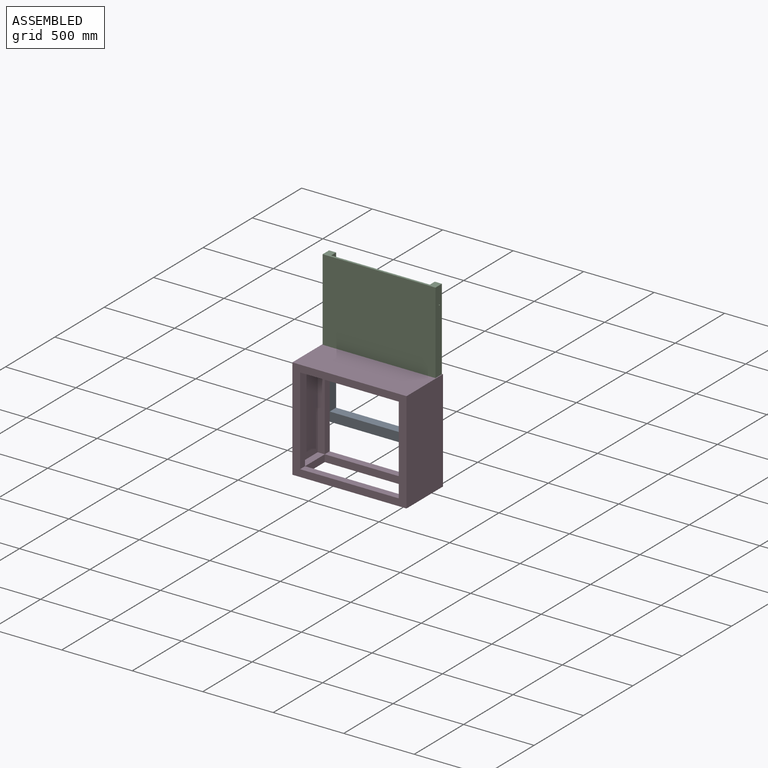
[diagram: assembled view]
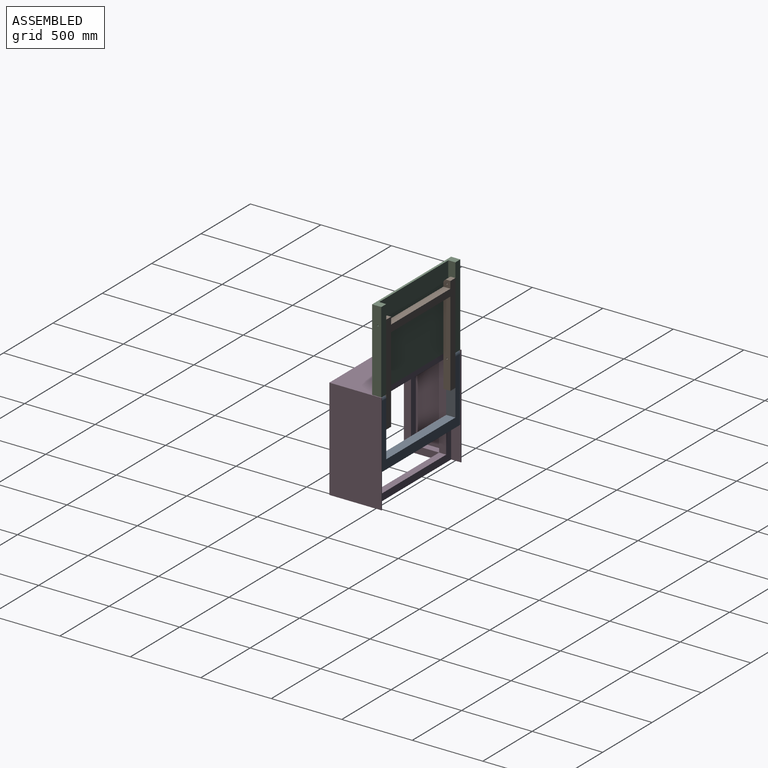
[diagram: assembled view, second angle]
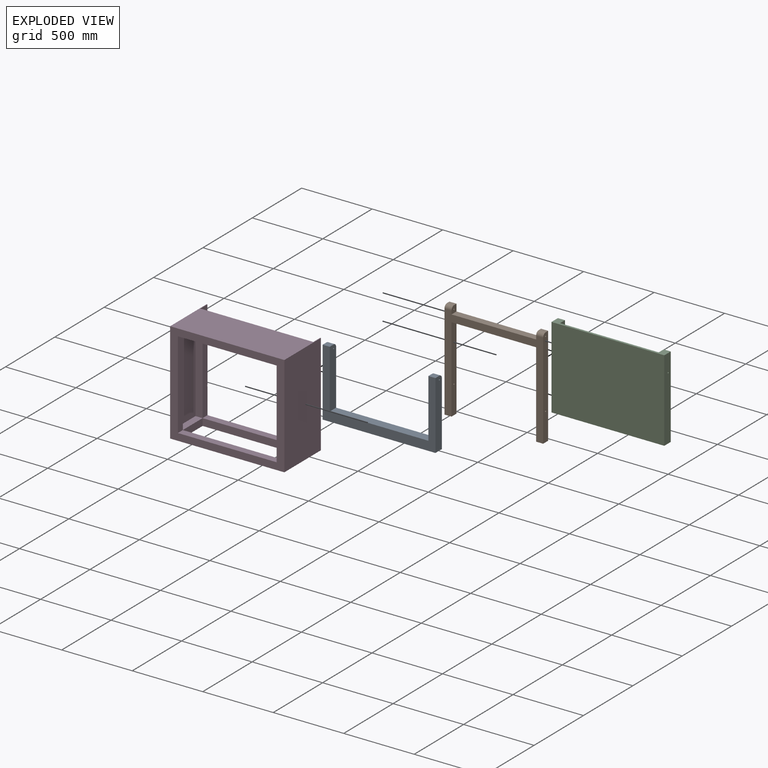
[diagram: exploded view]
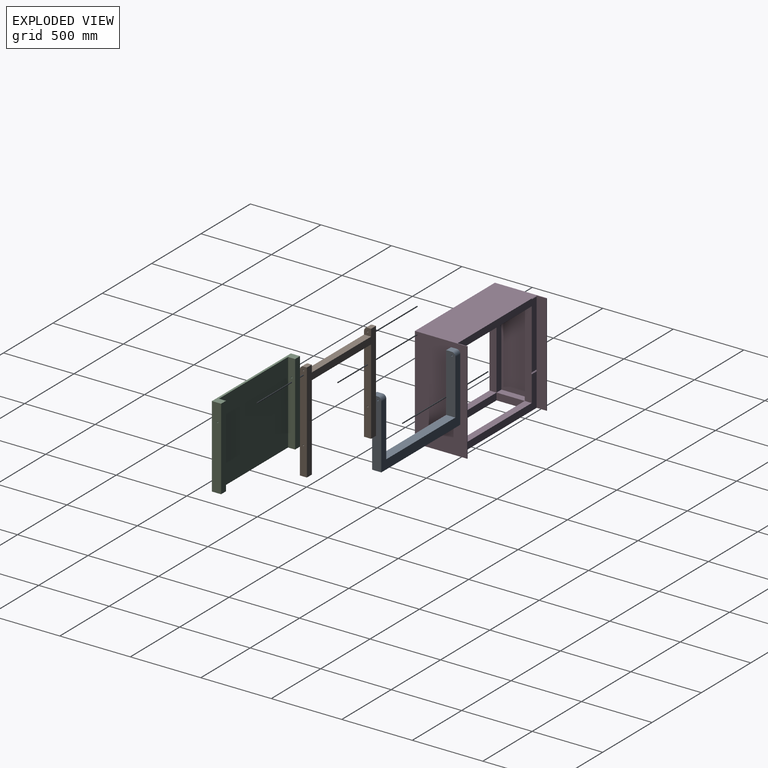
[diagram: exploded view, second angle]
ASSEMBLY  parts=4 mates=4
PART A: 14 faces, bbox 800x65x480 mm
  f0: plane 800x480mm, normal (0,-1,0), area 93500mm2, adj f1,f4,f6,f7,f8,f10,f12,f13
  f1: plane 800x65mm, normal (0,0,-1), area 52000mm2, adj f0,f2,f6,f12
  f2: plane 800x455mm, normal (0,1,0), area 91000mm2, adj f1,f3,f6,f7,f8,f9,f12,f13
  f3: cylinder r=25mm len=50mm, axis (-1,0,0), area 1963.5mm2, adj f2,f4,f6,f7
  f4: plane 50x40mm, normal (0,0,1), area 2000mm2, adj f0,f3,f6,f7
  f5: cylinder r=5mm len=50mm, axis (-1,0,0), area 1570.8mm2, adj f6,f7
  f6: plane 480x65mm, normal (1,0,0), area 30987.3mm2, adj f0,f1,f2,f3,f4,f5
  f7: plane 415x65mm, normal (-1,0,0), area 26762.3mm2, adj f0,f2,f3,f4,f5,f13
  f8: plane 415x65mm, normal (1,0,0), area 26762.3mm2, adj f0,f2,f9,f10,f11,f13
  f9: cylinder r=25mm len=50mm, axis (1,0,0), area 1963.5mm2, adj f2,f8,f10,f12
  f10: plane 50x40mm, normal (0,0,1), area 2000mm2, adj f0,f8,f9,f12
  f11: cylinder r=5mm len=50mm, axis (1,0,0), area 1570.8mm2, adj f8,f12
  f12: plane 480x65mm, normal (-1,0,0), area 30987.3mm2, adj f0,f1,f2,f9,f10,f11
  f13: plane 700x65mm, normal (0,0,1), area 45500mm2, adj f0,f2,f7,f8
PART B: 20 faces, bbox 700x50x705 mm
  f0: plane 50x50mm, normal (-1,0,0), area 2287.3mm2, adj f1,f2,f3,f4,f7,f18
  f1: plane 700x680mm, normal (0,-1,0), area 98000mm2, adj f0,f2,f5,f8,f9,f10,f11,f13
  f2: cylinder r=25mm len=50mm, axis (1,0,0), area 1963.5mm2, adj f0,f1,f3,f9
  f3: plane 50x25mm, normal (0,0,1), area 1250mm2, adj f0,f2,f4,f9
  f4: plane 705x700mm, normal (0,1,0), area 100500mm2, adj f0,f3,f5,f8,f9,f10,f12,f13
  f5: plane 50x50mm, normal (0,0,-1), area 2500mm2, adj f1,f4,f8,f9
  f6: cylinder r=5mm len=50mm, axis (1,0,0), area 1570.8mm2, adj f8,f9
  f7: cylinder r=5mm len=50mm, axis (1,0,0), area 1570.8mm2, adj f0,f9
  f8: plane 605x50mm, normal (-1,0,0), area 30171.5mm2, adj f1,f4,f5,f6,f19
  f9: plane 705x50mm, normal (1,0,0), area 34958.8mm2, adj f1,f2,f3,f4,f5,f6,f7
  f10: plane 50x50mm, normal (1,0,0), area 2287.3mm2, adj f1,f4,f11,f12,f15,f18
  f11: cylinder r=25mm len=50mm, axis (-1,0,0), area 1963.5mm2, adj f1,f10,f12,f17
  f12: plane 50x25mm, normal (0,0,1), area 1250mm2, adj f4,f10,f11,f17
  f13: plane 50x50mm, normal (0,0,-1), area 2500mm2, adj f1,f4,f16,f17
  f14: cylinder r=5mm len=50mm, axis (-1,0,0), area 1570.8mm2, adj f16,f17
  f15: cylinder r=5mm len=50mm, axis (-1,0,0), area 1570.8mm2, adj f10,f17
  f16: plane 605x50mm, normal (1,0,0), area 30171.5mm2, adj f1,f4,f13,f14,f19
  f17: plane 705x50mm, normal (-1,0,0), area 34958.8mm2, adj f1,f4,f11,f12,f13,f14,f15
  f18: plane 600x50mm, normal (0,0,1), area 30000mm2, adj f0,f1,f4,f10
  f19: plane 600x50mm, normal (0,0,-1), area 30000mm2, adj f1,f4,f8,f16
PART C: 12 faces, bbox 800x65x580 mm
  f0: plane 580x50mm, normal (-1,0,0), area 28921.5mm2, adj f1,f2,f3,f4,f7
  f1: plane 800x65mm, normal (0,0,-1), area 17000mm2, adj f0,f2,f5,f6,f7,f8,f9,f11
  f2: plane 580x50mm, normal (0,1,0), area 29000mm2, adj f0,f1,f3,f6
  f3: plane 800x65mm, normal (0,0,1), area 17000mm2, adj f0,f2,f5,f6,f7,f8,f9,f11
  f4: cylinder r=5mm len=50mm, axis (-1,0,0), area 1570.8mm2, adj f0,f6
  f5: plane 800x580mm, normal (0,-1,0), area 464000mm2, adj f1,f3,f6,f11
  f6: plane 580x65mm, normal (1,0,0), area 37621.5mm2, adj f1,f2,f3,f4,f5
  f7: plane 700x580mm, normal (0,1,0), area 406000mm2, adj f0,f1,f3,f8
  f8: plane 580x50mm, normal (1,0,0), area 28921.5mm2, adj f1,f3,f7,f9,f10
  f9: plane 580x50mm, normal (0,1,0), area 29000mm2, adj f1,f3,f8,f11
  f10: cylinder r=5mm len=50mm, axis (1,0,0), area 1570.8mm2, adj f8,f11
  f11: plane 580x65mm, normal (-1,0,0), area 37621.5mm2, adj f1,f3,f5,f9,f10
PART D: 49 faces, bbox 810x370x720 mm
  f0: plane 720x75mm, normal (-1,0,0), area 50428.9mm2, adj f3,f13,f14,f15,f16,f17,f18,f23
  f1: plane 810x720mm, normal (0,-1,0), area 149200mm2, adj f2,f5,f11,f15,f23,f27,f41,f46
  f2: plane 720x370mm, normal (1,0,0), area 266400mm2, adj f1,f3,f15,f23
  f3: plane 720x5mm, normal (0,1,0), area 3600mm2, adj f0,f2,f15,f23
  f4: plane 720x75mm, normal (1,0,0), area 50443.3mm2, adj f6,f14,f15,f16,f23,f29,f30,f31
  f5: plane 720x370mm, normal (-1,0,0), area 266400mm2, adj f1,f6,f15,f23
  f6: plane 720x5mm, normal (0,1,0), area 3600mm2, adj f4,f5,f15,f23
  f7: plane 200x35mm, normal (-1,0,0), area 7000mm2, adj f9,f10,f20,f48
  f8: plane 200x35mm, normal (1,0,0), area 7000mm2, adj f9,f10,f35,f48
  f9: plane 700x35mm, normal (0,1,0), area 24500mm2, adj f7,f8,f41,f48
  f10: plane 700x35mm, normal (0,-1,0), area 24500mm2, adj f7,f8,f42,f48
  f11: plane 620x50mm, normal (-1,0,0), area 31000mm2, adj f1,f19,f41,f46
  f12: plane 620x50mm, normal (-1,0,0), area 30971.1mm2, adj f13,f14,f16,f17,f18,f21,f24,f42
  f13: plane 50x5mm, normal (0,0.5,-0.87), area 288.7mm2, adj f0,f12,f14,f24
  f14: plane 800x474.23mm, normal (0,1,0), area 82134mm2, adj f0,f4,f12,f13,f23,f29,f30,f39
  f15: plane 810x370mm, normal (0,0,-1), area 103700mm2, adj f0,f1,f2,f3,f4,f5,f6,f16
  f16: plane 800x234.23mm, normal (0,1,0), area 58422.6mm2, adj f0,f4,f12,f15,f17,f32,f39,f45
  f17: plane 50x5mm, normal (0,0.5,0.87), area 288.7mm2, adj f0,f12,f16,f18
  f18: plane 50x5mm, normal (0,0.5,-0.87), area 288.7mm2, adj f0,f12,f17,f24
  f19: plane 620x50mm, normal (0,1,0), area 31000mm2, adj f11,f20,f22,f26
  f20: plane 200x50mm, normal (0,0,-1), area 10000mm2, adj f7,f19,f21,f26
  f21: plane 620x50mm, normal (0,-1,0), area 31000mm2, adj f12,f20,f22,f26
  f22: plane 200x50mm, normal (0,0,1), area 10000mm2, adj f19,f21,f25,f26
  f23: plane 810x370mm, normal (0,0,1), area 243700mm2, adj f0,f1,f2,f3,f4,f5,f6,f14
  f24: plane 50x5mm, normal (0,0.5,0.87), area 288.7mm2, adj f0,f12,f13,f18
  f25: plane 200x50mm, normal (-1,0,0), area 10000mm2, adj f15,f22,f44,f47
  f26: plane 620x200mm, normal (-1,0,0), area 124000mm2, adj f19,f20,f21,f22
  f27: plane 620x50mm, normal (1,0,0), area 31000mm2, adj f1,f34,f41,f46
  f28: plane 200x50mm, normal (1,0,0), area 10000mm2, adj f15,f37,f44,f47
  f29: plane 50x5mm, normal (0,0.5,-0.87), area 288.7mm2, adj f4,f14,f38,f39
  f30: plane 50x5mm, normal (0,0.5,0.87), area 288.7mm2, adj f4,f14,f31,f43
  f31: plane 50x5mm, normal (0,0.5,-0.87), area 288.7mm2, adj f4,f23,f30,f43
  f32: plane 50x5mm, normal (0,0.5,0.87), area 288.7mm2, adj f4,f16,f33,f39
  f33: plane 50x5mm, normal (0,0.5,-0.87), area 288.7mm2, adj f4,f32,f38,f39
  f34: plane 620x50mm, normal (0,1,0), area 31000mm2, adj f27,f35,f37,f40
  f35: plane 200x50mm, normal (0,0,-1), area 10000mm2, adj f8,f34,f36,f40
  f36: plane 620x50mm, normal (0,-1,0), area 31000mm2, adj f35,f37,f39,f40
  f37: plane 200x50mm, normal (0,0,1), area 10000mm2, adj f28,f34,f36,f40
  f38: plane 50x5mm, normal (0,0.5,0.87), area 288.7mm2, adj f4,f29,f33,f39
  f39: plane 620x50mm, normal (1,0,0), area 30971.1mm2, adj f14,f16,f29,f32,f33,f36,f38,f42
  f40: plane 620x200mm, normal (1,0,0), area 124000mm2, adj f34,f35,f36,f37
  f41: plane 700x50mm, normal (0,0,-1), area 35000mm2, adj f1,f9,f11,f27
  f42: plane 700x50mm, normal (0,0,-1), area 35000mm2, adj f10,f12,f14,f39
  f43: plane 5.77x5mm, normal (-1,0,0), area 14.4mm2, adj f14,f30,f31
  f44: plane 700x50mm, normal (0,-1,0), area 35000mm2, adj f15,f25,f28,f45
  f45: plane 700x50mm, normal (0,0,1), area 35000mm2, adj f12,f16,f39,f44
  f46: plane 700x50mm, normal (0,0,1), area 35000mm2, adj f1,f11,f27,f47
  f47: plane 700x50mm, normal (0,1,0), area 35000mm2, adj f15,f25,f28,f46
  f48: plane 700x200mm, normal (0,0,-1), area 140000mm2, adj f7,f8,f9,f10
PLACE A at identity
PLACE B at identity
PLACE C at identity
PLACE D at identity fixed
MATE revolute B.f6 <-> A.f3  axis (1,0,0) through (0,40,695)mm
MATE revolute C.f4 <-> B.f2  axis (-1,0,0) through (0,40,1175)mm
MATE revolute A.f12 <-> D.f4  axis (-1,0,0) through (-750,0,240)mm
MATE revolute D.f4 <-> C.f11  axis (1,0,0) through (-750,0,720)mm
